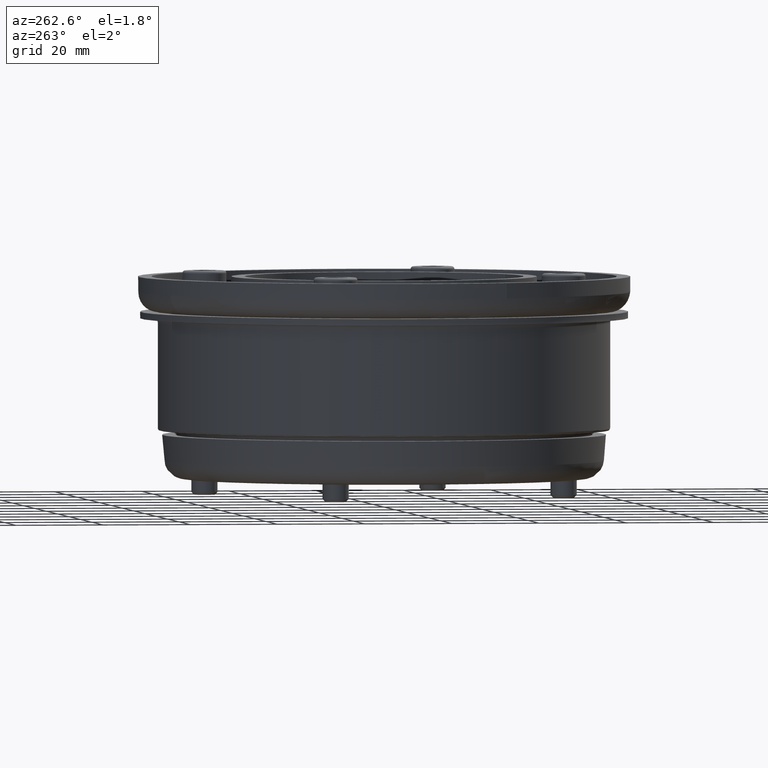
[diagram: clean part render]
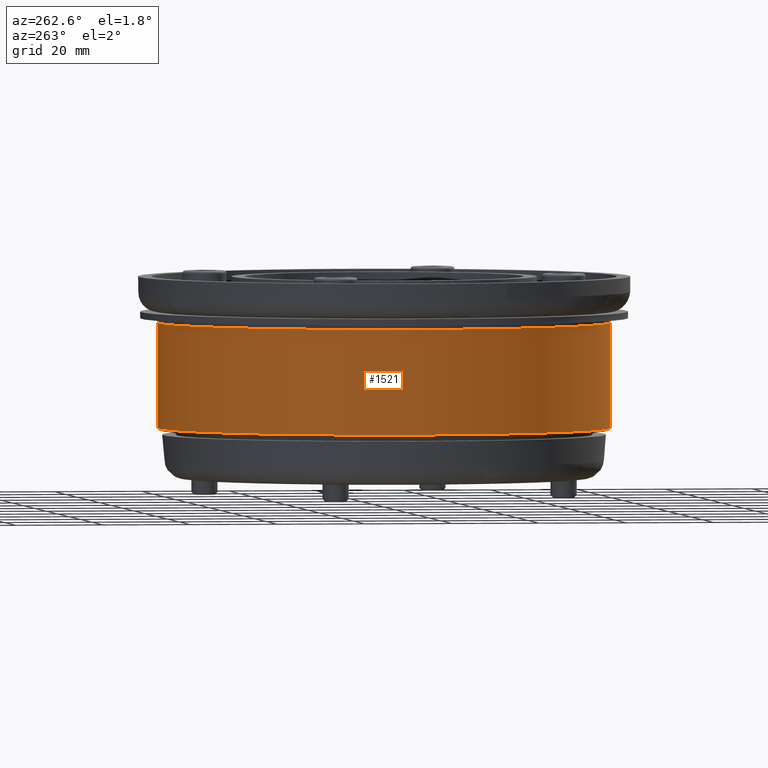
[diagram: same view with one face highlighted and labeled with its STEP entity id]
A machine part, auxiliary view. The second image highlights one B-rep face of the part: STEP entity #1521.
In plain terms, the highlighted cylindrical surface (bore or boss wall) has radius 51.5 mm, axis along (-0, -0, 1).
Its self-contained STEP definition (entity closure, byte-faithful):
#1459=CARTESIAN_POINT('',(-1.110223E-015,-51.499999999999993,32.5));
#1460=VERTEX_POINT('',#1459);
#1461=CARTESIAN_POINT('',(-5.551115E-016,5.551115E-016,32.5));
#1462=DIRECTION('',(0.0,0.0,1.0));
#1463=DIRECTION('',(0.0,1.0,0.0));
#1464=AXIS2_PLACEMENT_3D('',#1461,#1462,#1463);
#1465=CIRCLE('',#1464,51.499999999999993);
#1466=EDGE_CURVE('',#1460,#1460,#1465,.T.);
#1502=CARTESIAN_POINT('',(-5.551115E-016,5.551115E-016,0.0));
#1503=DIRECTION('',(0.0,0.0,1.0));
#1504=DIRECTION('',(-1.0,0.0,0.0));
#1505=AXIS2_PLACEMENT_3D('',#1502,#1503,#1504);
#1506=CYLINDRICAL_SURFACE('',#1505,51.499999999999993);
#1507=CARTESIAN_POINT('',(51.499999999999993,-5.751820E-015,8.5));
#1508=VERTEX_POINT('',#1507);
#1509=CARTESIAN_POINT('',(-5.551115E-016,5.551115E-016,8.5));
#1510=DIRECTION('',(0.0,0.0,-1.0));
#1511=DIRECTION('',(-1.0,0.0,0.0));
#1512=AXIS2_PLACEMENT_3D('',#1509,#1510,#1511);
#1513=CIRCLE('',#1512,51.499999999999993);
#1514=EDGE_CURVE('',#1508,#1508,#1513,.T.);
#1515=ORIENTED_EDGE('',*,*,#1514,.F.);
#1516=EDGE_LOOP('',(#1515));
#1517=FACE_OUTER_BOUND('',#1516,.T.);
#1518=ORIENTED_EDGE('',*,*,#1466,.F.);
#1519=EDGE_LOOP('',(#1518));
#1520=FACE_BOUND('',#1519,.T.);
#1521=ADVANCED_FACE('',(#1517,#1520),#1506,.T.);